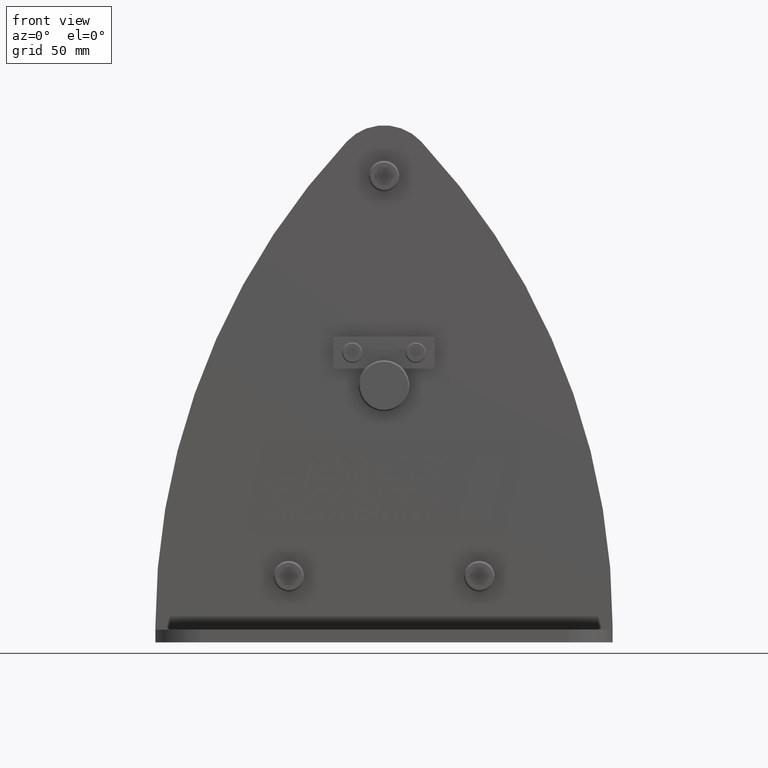
[diagram: clean part render]
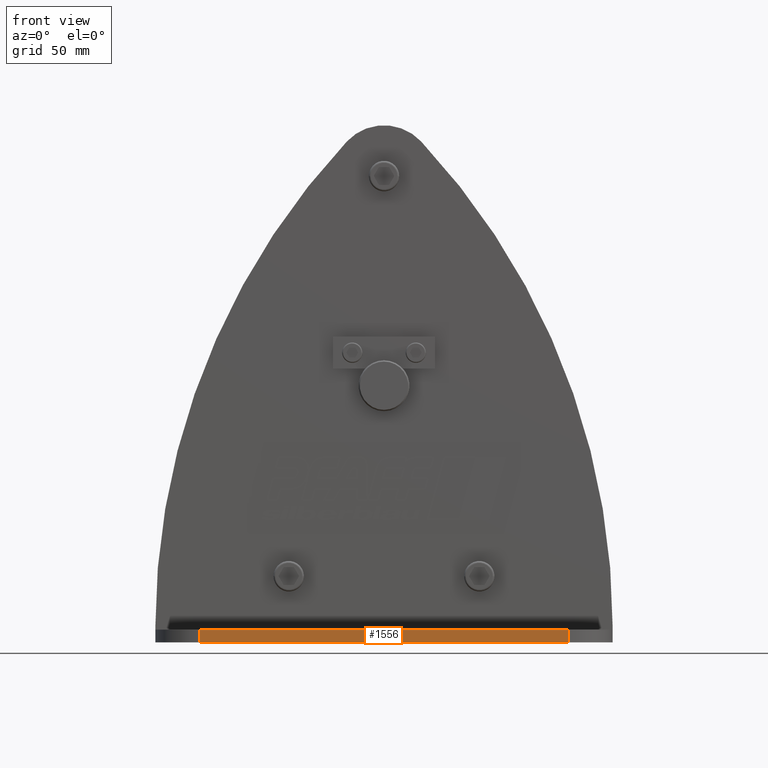
[diagram: same view with one face highlighted and labeled with its STEP entity id]
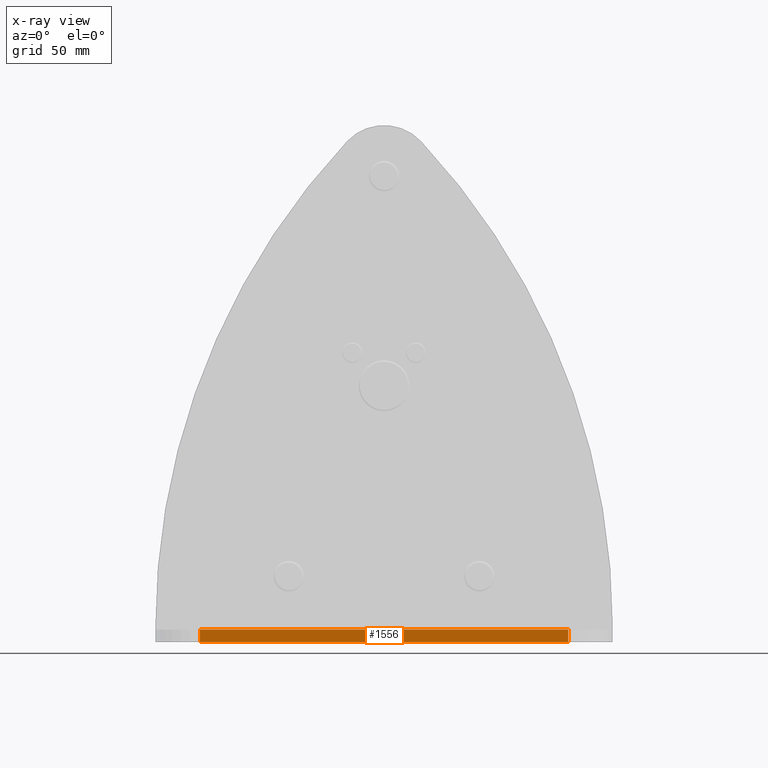
[diagram: x-ray of the same camera — body ghosted, the highlighted face saturated]
A machine part, front view. The second image highlights one B-rep face of the part: STEP entity #1556.
The next image is the same camera in x-ray: the body ghosted, the highlighted face saturated — about 0% of this face is hidden behind the body in this view.
In plain terms, the highlighted planar face has unit normal (0, -1, 0).
Its self-contained STEP definition (entity closure, byte-faithful):
#1556=ADVANCED_FACE('',(#3379),#3380,.T.);
#3379=FACE_OUTER_BOUND('',#5451,.T.);
#3380=PLANE('',#5452);
#5451=EDGE_LOOP('',(#10383,#10384,#10385,#10386));
#5452=AXIS2_PLACEMENT_3D('',#10387,#10388,#10389);
#10383=ORIENTED_EDGE('',*,*,#14194,.T.);
#10384=ORIENTED_EDGE('',*,*,#14197,.F.);
#10385=ORIENTED_EDGE('',*,*,#14179,.T.);
#10386=ORIENTED_EDGE('',*,*,#14199,.T.);
#10387=CARTESIAN_POINT('',(3.80850906367414E-012,-95.5,-202.0));
#10388=DIRECTION('',(0.0,-1.0,0.0));
#10389=DIRECTION('',(1.0,0.0,0.0));
#14179=EDGE_CURVE('',#17629,#17627,#17630,.T.);
#14194=EDGE_CURVE('',#17655,#17653,#17656,.T.);
#14197=EDGE_CURVE('',#17629,#17653,#17659,.T.);
#14199=EDGE_CURVE('',#17627,#17655,#17661,.T.);
#17627=VERTEX_POINT('',#25847);
#17629=VERTEX_POINT('',#25849);
#17630=LINE('',#25850,#25851);
#17653=VERTEX_POINT('',#25880);
#17655=VERTEX_POINT('',#25882);
#17656=LINE('',#25883,#25884);
#17659=LINE('',#25887,#25888);
#17661=LINE('',#25890,#25891);
#25847=CARTESIAN_POINT('',(145.0,-95.5,-202.0));
#25849=CARTESIAN_POINT('',(-144.999999999992,-95.5,-202.0));
#25850=CARTESIAN_POINT('',(-145.0,-95.5,-202.0));
#25851=VECTOR('',#30406,1.0);
#25880=CARTESIAN_POINT('',(-144.999999999992,-95.5,-192.0));
#25882=CARTESIAN_POINT('',(145.0,-95.5,-192.0));
#25883=CARTESIAN_POINT('',(-145.0,-95.5,-192.0));
#25884=VECTOR('',#30431,1.0);
#25887=CARTESIAN_POINT('',(-144.999999999992,-95.5,-202.0));
#25888=VECTOR('',#30435,1.0);
#25890=CARTESIAN_POINT('',(145.0,-95.5,-202.0));
#25891=VECTOR('',#30436,1.0);
#30406=DIRECTION('',(1.0,0.0,0.0));
#30431=DIRECTION('',(-1.0,-0.0,-0.0));
#30435=DIRECTION('',(0.0,0.0,1.0));
#30436=DIRECTION('',(0.0,0.0,1.0));